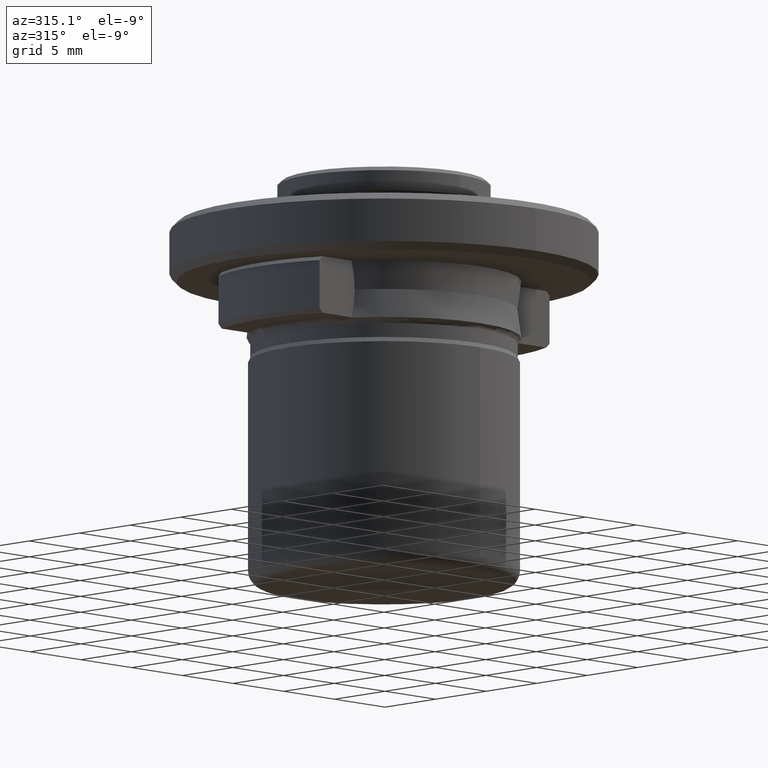
[diagram: clean part render]
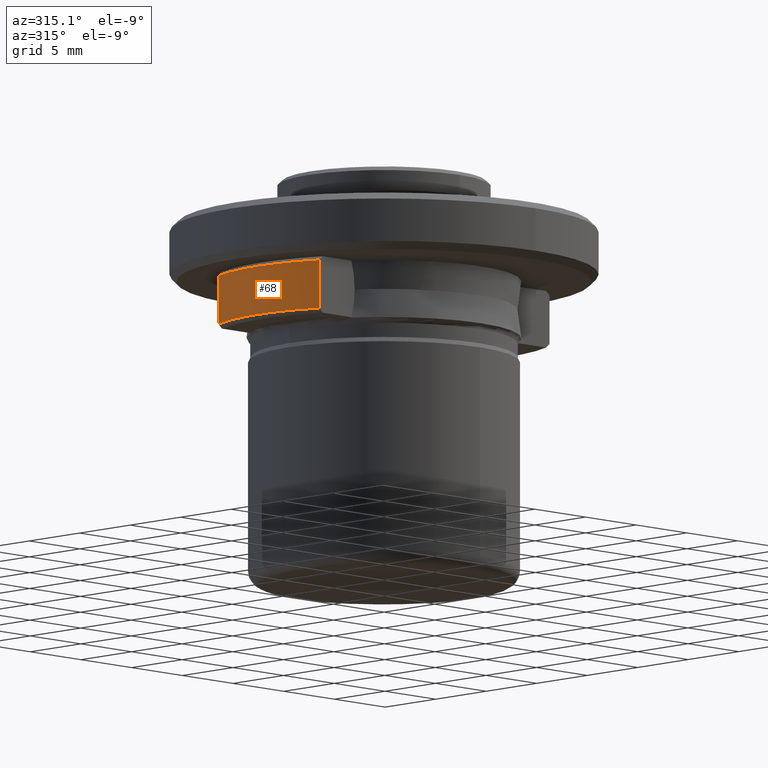
[diagram: same view with one face highlighted and labeled with its STEP entity id]
A machine part, auxiliary view. The second image highlights one B-rep face of the part: STEP entity #68.
In plain terms, the highlighted cylindrical surface (partial cylindrical patch) has radius 12.4 mm, axis along (0, 0, 1).
Its self-contained STEP definition (entity closure, byte-faithful):
#68 = ADVANCED_FACE ( 'NONE', ( #890 ), #1732, .T. ) ;
#95 = VECTOR ( 'NONE', #792, 1000.000000000000000 ) ;
#139 = VERTEX_POINT ( 'NONE', #841 ) ;
#140 = CARTESIAN_POINT ( 'NONE',  ( 0.0000000000000000000, 0.0000000000000000000, 5.049999999999999800 ) ) ;
#142 = EDGE_CURVE ( 'NONE', #1452, #139, #1233, .T. ) ;
#143 = DIRECTION ( 'NONE',  ( 1.000000000000000000, 0.0000000000000000000, 6.994852725712930200E-017 ) ) ;
#156 = ORIENTED_EDGE ( 'NONE', *, *, #1666, .F. ) ;
#157 = CARTESIAN_POINT ( 'NONE',  ( -11.34724636179920400, -5.000000000000000000, 5.049999999814682300 ) ) ;
#227 = CARTESIAN_POINT ( 'NONE',  ( -11.34724636212554000, -5.000000000000000000, 8.449999999886687300 ) ) ;
#313 = VERTEX_POINT ( 'NONE', #227 ) ;
#415 = AXIS2_PLACEMENT_3D ( 'NONE', #2156, #1156, #143 ) ;
#531 = CIRCLE ( 'NONE', #2078, 12.40000000000000200 ) ;
#699 = DIRECTION ( 'NONE',  ( 0.0000000000000000000, 0.0000000000000000000, 1.000000000000000000 ) ) ;
#746 = VERTEX_POINT ( 'NONE', #157 ) ;
#792 = DIRECTION ( 'NONE',  ( -0.0000000000000000000, -0.0000000000000000000, 1.000000000000000000 ) ) ;
#803 = CARTESIAN_POINT ( 'NONE',  ( 0.0000000000000000000, 0.0000000000000000000, 8.449999999999999300 ) ) ;
#841 = CARTESIAN_POINT ( 'NONE',  ( -11.34724636108874700, 5.000000002381489700, 8.449999999876746800 ) ) ;
#880 = DIRECTION ( 'NONE',  ( 0.0000000000000000000, 3.497426362856465100E-017, 1.000000000000000000 ) ) ;
#885 = CARTESIAN_POINT ( 'NONE',  ( 0.0000000000000000000, 0.0000000000000000000, 8.449999999999999300 ) ) ;
#890 = FACE_OUTER_BOUND ( 'NONE', #1214, .T. ) ;
#950 = EDGE_CURVE ( 'NONE', #139, #1938, #1905, .T. ) ;
#973 = DIRECTION ( 'NONE',  ( 1.000000000000000000, 0.0000000000000000000, 1.398970545142586000E-016 ) ) ;
#1000 = AXIS2_PLACEMENT_3D ( 'NONE', #885, #2063, #1057 ) ;
#1014 = ORIENTED_EDGE ( 'NONE', *, *, #142, .F. ) ;
#1050 = AXIS2_PLACEMENT_3D ( 'NONE', #140, #880, #1361 ) ;
#1057 = DIRECTION ( 'NONE',  ( 1.000000000000000000, 0.0000000000000000000, 1.398970545142586000E-016 ) ) ;
#1064 = CIRCLE ( 'NONE', #415, 12.40000000000000200 ) ;
#1156 = DIRECTION ( 'NONE',  ( -0.0000000000000000000, -0.0000000000000000000, -1.000000000000000000 ) ) ;
#1212 = CARTESIAN_POINT ( 'NONE',  ( -12.40000000000000400, 0.0000000000000000000, 8.449999999999999300 ) ) ;
#1214 = EDGE_LOOP ( 'NONE', ( #2137, #1999, #1272, #1014, #156 ) ) ;
#1233 = LINE ( 'NONE', #1391, #2077 ) ;
#1272 = ORIENTED_EDGE ( 'NONE', *, *, #950, .F. ) ;
#1318 = EDGE_CURVE ( 'NONE', #746, #313, #1479, .T. ) ;
#1361 = DIRECTION ( 'NONE',  ( 0.0000000000000000000, -1.000000000000000000, 0.0000000000000000000 ) ) ;
#1362 = EDGE_CURVE ( 'NONE', #1938, #313, #531, .T. ) ;
#1391 = CARTESIAN_POINT ( 'NONE',  ( -11.34724635990468900, 5.000000004762981100, 6.750000000000000900 ) ) ;
#1452 = VERTEX_POINT ( 'NONE', #1991 ) ;
#1479 = LINE ( 'NONE', #1628, #95 ) ;
#1628 = CARTESIAN_POINT ( 'NONE',  ( -11.34724636200000000, -5.000000000000000000, 6.725040224999999900 ) ) ;
#1666 = EDGE_CURVE ( 'NONE', #746, #1452, #1064, .T. ) ;
#1732 = CYLINDRICAL_SURFACE ( 'NONE', #1050, 12.40000000000000200 ) ;
#1905 = CIRCLE ( 'NONE', #1000, 12.40000000000000200 ) ;
#1938 = VERTEX_POINT ( 'NONE', #1212 ) ;
#1977 = DIRECTION ( 'NONE',  ( 0.0000000000000000000, 0.0000000000000000000, 1.000000000000000000 ) ) ;
#1991 = CARTESIAN_POINT ( 'NONE',  ( -11.34724636062125900, 5.000000002381489700, 5.049999999695453200 ) ) ;
#1999 = ORIENTED_EDGE ( 'NONE', *, *, #1362, .F. ) ;
#2063 = DIRECTION ( 'NONE',  ( 0.0000000000000000000, 0.0000000000000000000, 1.000000000000000000 ) ) ;
#2077 = VECTOR ( 'NONE', #699, 1000.000000000000000 ) ;
#2078 = AXIS2_PLACEMENT_3D ( 'NONE', #803, #1977, #973 ) ;
#2137 = ORIENTED_EDGE ( 'NONE', *, *, #1318, .T. ) ;
#2156 = CARTESIAN_POINT ( 'NONE',  ( 0.0000000000000000000, 0.0000000000000000000, 5.049999999999998900 ) ) ;